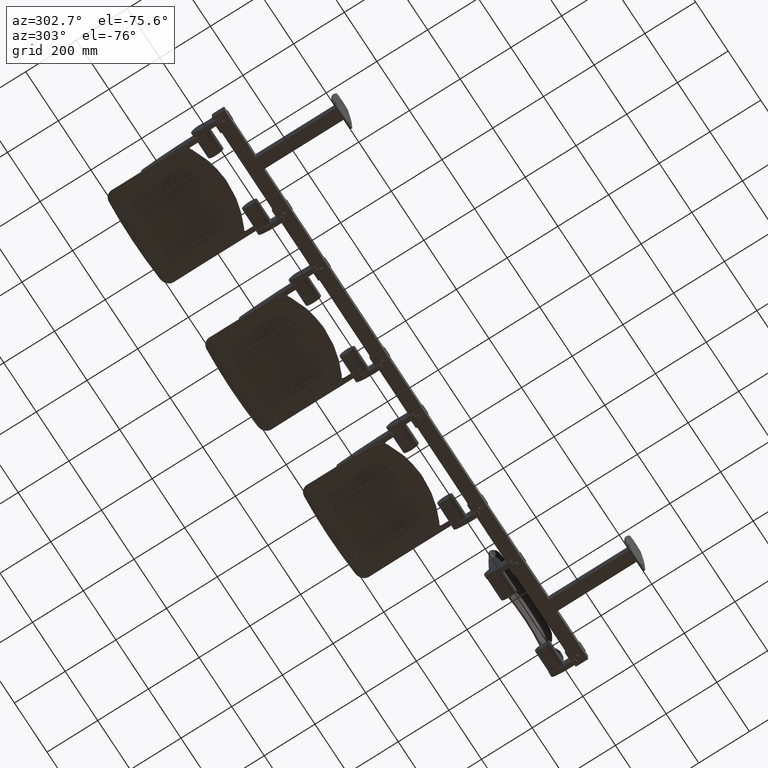
[diagram: clean part render]
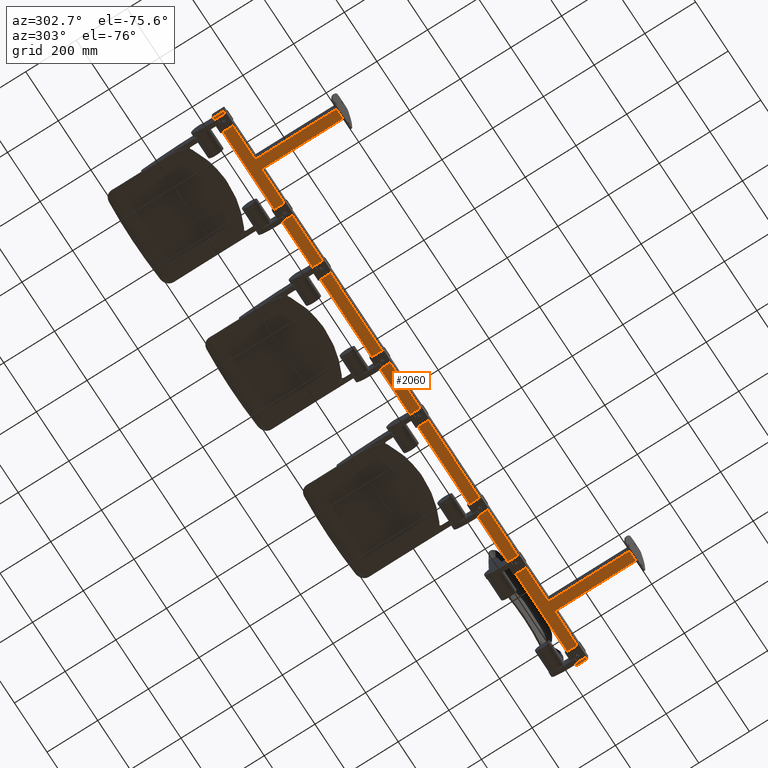
[diagram: same view with one face highlighted and labeled with its STEP entity id]
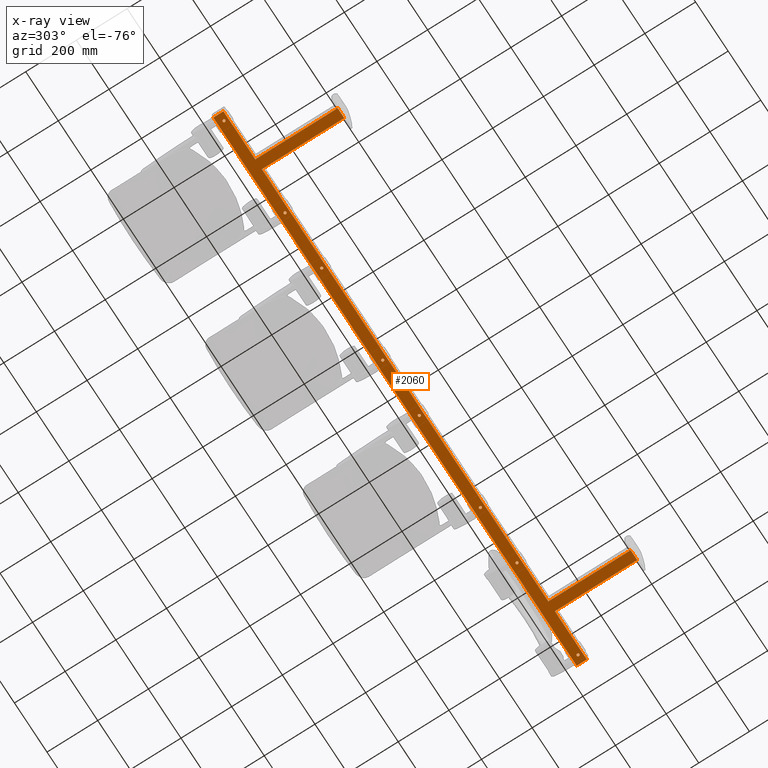
[diagram: x-ray of the same camera — body ghosted, the highlighted face saturated]
A machine part, auxiliary view. The second image highlights one B-rep face of the part: STEP entity #2060.
The next image is the same camera in x-ray: the body ghosted, the highlighted face saturated — about 0% of this face is hidden behind the body in this view.
In plain terms, the highlighted planar face has unit normal (0, 0, -1).
Its self-contained STEP definition (entity closure, byte-faithful):
#247 = CARTESIAN_POINT ( 'NONE',  ( 487.4999999999998300, 346.9999999999999400, -25.00000000000000000 ) ) ;
#248 = DIRECTION ( 'NONE',  ( 0.0000000000000000000, 0.0000000000000000000, 1.000000000000000000 ) ) ;
#249 = DIRECTION ( 'NONE',  ( 1.000000000000000000, 0.0000000000000000000, 0.0000000000000000000 ) ) ;
#251 = CARTESIAN_POINT ( 'NONE',  ( 112.4999999999998300, 346.9999999999998900, -25.00000000000000000 ) ) ;
#252 = DIRECTION ( 'NONE',  ( 0.0000000000000000000, 0.0000000000000000000, 1.000000000000000000 ) ) ;
#253 = DIRECTION ( 'NONE',  ( 1.000000000000000000, 0.0000000000000000000, 0.0000000000000000000 ) ) ;
#1372 = AXIS2_PLACEMENT_3D ( 'NONE', #3250, #3251, #3252 ) ;
#1377 = AXIS2_PLACEMENT_3D ( 'NONE', #3264, #3265, #3266 ) ;
#1382 = AXIS2_PLACEMENT_3D ( 'NONE', #3273, #3274, #3275 ) ;
#2060 = ADVANCED_FACE ( 'NONE', ( #11495, #11497, #11499, #11494, #11492, #11491, #11493, #11500, #11498 ), #11302, .T. ) ;
#2450 = CIRCLE ( 'NONE', #10338, 5.250000000000060400 ) ;
#2453 = CIRCLE ( 'NONE', #10339, 5.250000000000032000 ) ;
#2454 = CIRCLE ( 'NONE', #10341, 5.249999999999976900 ) ;
#2455 = CIRCLE ( 'NONE', #10340, 5.249999999999976900 ) ;
#2456 = LINE ( 'NONE', #14373, #2459 ) ;
#2457 = LINE ( 'NONE', #14372, #2461 ) ;
#2458 = CIRCLE ( 'NONE', #10343, 5.249999999999976900 ) ;
#2459 = VECTOR ( 'NONE', #14362, 1000.000000000000000 ) ;
#2460 = LINE ( 'NONE', #14378, #2463 ) ;
#2461 = VECTOR ( 'NONE', #14377, 1000.000000000000000 ) ;
#2462 = LINE ( 'NONE', #14380, #2465 ) ;
#2463 = VECTOR ( 'NONE', #14379, 1000.000000000000000 ) ;
#2464 = LINE ( 'NONE', #14382, #2467 ) ;
#2465 = VECTOR ( 'NONE', #14381, 1000.000000000000000 ) ;
#2466 = LINE ( 'NONE', #14384, #2469 ) ;
#2467 = VECTOR ( 'NONE', #14383, 1000.000000000000000 ) ;
#2468 = LINE ( 'NONE', #14386, #2471 ) ;
#2469 = VECTOR ( 'NONE', #14385, 1000.000000000000000 ) ;
#2470 = LINE ( 'NONE', #14388, #2473 ) ;
#2471 = VECTOR ( 'NONE', #14387, 1000.000000000000000 ) ;
#2472 = LINE ( 'NONE', #14390, #2475 ) ;
#2473 = VECTOR ( 'NONE', #14389, 1000.000000000000000 ) ;
#2474 = LINE ( 'NONE', #14392, #2477 ) ;
#2475 = VECTOR ( 'NONE', #14391, 1000.000000000000000 ) ;
#2476 = LINE ( 'NONE', #14394, #2479 ) ;
#2477 = VECTOR ( 'NONE', #14393, 1000.000000000000000 ) ;
#2478 = CIRCLE ( 'NONE', #10342, 5.249999999999976900 ) ;
#2479 = VECTOR ( 'NONE', #14395, 1000.000000000000000 ) ;
#2481 = CIRCLE ( 'NONE', #10344, 5.249999999999949400 ) ;
#2482 = CIRCLE ( 'NONE', #10345, 5.249999999999976900 ) ;
#2534 = LINE ( 'NONE', #14484, #2537 ) ;
#2537 = VECTOR ( 'NONE', #14485, 1000.000000000000000 ) ;
#2605 = CIRCLE ( 'NONE', #10373, 5.249999999999976900 ) ;
#2610 = CIRCLE ( 'NONE', #10375, 5.249999999999976900 ) ;
#2611 = CIRCLE ( 'NONE', #10376, 5.249999999999976900 ) ;
#3250 = CARTESIAN_POINT ( 'NONE',  ( -487.5000000000001700, 346.9999999999998900, -25.00000000000000000 ) ) ;
#3251 = DIRECTION ( 'NONE',  ( 0.0000000000000000000, 0.0000000000000000000, 1.000000000000000000 ) ) ;
#3252 = DIRECTION ( 'NONE',  ( 1.000000000000000000, 0.0000000000000000000, 0.0000000000000000000 ) ) ;
#3264 = CARTESIAN_POINT ( 'NONE',  ( -112.5000000000001600, 346.9999999999999400, -25.00000000000000000 ) ) ;
#3265 = DIRECTION ( 'NONE',  ( 0.0000000000000000000, 0.0000000000000000000, 1.000000000000000000 ) ) ;
#3266 = DIRECTION ( 'NONE',  ( 1.000000000000000000, 0.0000000000000000000, 0.0000000000000000000 ) ) ;
#3273 = CARTESIAN_POINT ( 'NONE',  ( 712.5000000000001100, 346.9999999999999400, -25.00000000000000000 ) ) ;
#3274 = DIRECTION ( 'NONE',  ( 0.0000000000000000000, 0.0000000000000000000, 1.000000000000000000 ) ) ;
#3275 = DIRECTION ( 'NONE',  ( -1.000000000000000000, 0.0000000000000000000, 0.0000000000000000000 ) ) ;
#3723 = CARTESIAN_POINT ( 'NONE',  ( 707.2500000000001100, 346.9999999999999400, -25.00000000000000000 ) ) ;
#3730 = CARTESIAN_POINT ( 'NONE',  ( -482.2500000000001100, 346.9999999999998900, -25.00000000000000000 ) ) ;
#4177 = CIRCLE ( 'NONE', #10427, 5.249999999999976900 ) ;
#4180 = CIRCLE ( 'NONE', #10428, 5.250000000000060400 ) ;
#4268 = EDGE_LOOP ( 'NONE', ( #11614, #11597 ) ) ;
#4291 = EDGE_LOOP ( 'NONE', ( #11633, #11631 ) ) ;
#4310 = EDGE_LOOP ( 'NONE', ( #11643, #11621 ) ) ;
#4352 = EDGE_LOOP ( 'NONE', ( #11612, #11611 ) ) ;
#4377 = EDGE_LOOP ( 'NONE', ( #11622, #11635 ) ) ;
#5585 = VERTEX_POINT ( 'NONE', #6415 ) ;
#5587 = VERTEX_POINT ( 'NONE', #6417 ) ;
#5591 = VERTEX_POINT ( 'NONE', #6421 ) ;
#5614 = VERTEX_POINT ( 'NONE', #6444 ) ;
#5642 = VERTEX_POINT ( 'NONE', #6040 ) ;
#5651 = VERTEX_POINT ( 'NONE', #6057 ) ;
#5656 = VERTEX_POINT ( 'NONE', #6066 ) ;
#5657 = VERTEX_POINT ( 'NONE', #6068 ) ;
#5659 = VERTEX_POINT ( 'NONE', #6072 ) ;
#5662 = VERTEX_POINT ( 'NONE', #6078 ) ;
#5664 = VERTEX_POINT ( 'NONE', #6081 ) ;
#5665 = VERTEX_POINT ( 'NONE', #6083 ) ;
#5667 = VERTEX_POINT ( 'NONE', #6087 ) ;
#5679 = VERTEX_POINT ( 'NONE', #6108 ) ;
#5681 = VERTEX_POINT ( 'NONE', #6112 ) ;
#5682 = VERTEX_POINT ( 'NONE', #6113 ) ;
#5708 = VERTEX_POINT ( 'NONE', #6162 ) ;
#5711 = VERTEX_POINT ( 'NONE', #6167 ) ;
#5713 = VERTEX_POINT ( 'NONE', #6171 ) ;
#5722 = VERTEX_POINT ( 'NONE', #6188 ) ;
#5758 = VERTEX_POINT ( 'NONE', #6255 ) ;
#5762 = VERTEX_POINT ( 'NONE', #6262 ) ;
#5763 = VERTEX_POINT ( 'NONE', #6263 ) ;
#5765 = VERTEX_POINT ( 'NONE', #6265 ) ;
#5769 = VERTEX_POINT ( 'NONE', #6269 ) ;
#5770 = VERTEX_POINT ( 'NONE', #6270 ) ;
#5807 = EDGE_LOOP ( 'NONE', ( #11608, #11607 ) ) ;
#6040 = CARTESIAN_POINT ( 'NONE',  ( 492.7499999999997700, 346.9999999999999400, -25.00000000000000000 ) ) ;
#6057 = CARTESIAN_POINT ( 'NONE',  ( 919.9999999999996600, 6.000000000000000900, -25.00000000000000000 ) ) ;
#6066 = CARTESIAN_POINT ( 'NONE',  ( 117.7499999999998900, 346.9999999999998900, -25.00000000000000000 ) ) ;
#6068 = CARTESIAN_POINT ( 'NONE',  ( 482.2499999999998300, 346.9999999999999400, -25.00000000000000000 ) ) ;
#6072 = CARTESIAN_POINT ( 'NONE',  ( -1115.999999999999800, 371.0000000000000000, -25.00000000000000000 ) ) ;
#6078 = CARTESIAN_POINT ( 'NONE',  ( 1116.000000000000000, 371.0000000000000000, -25.00000000000000000 ) ) ;
#6081 = CARTESIAN_POINT ( 'NONE',  ( -717.7500000000001100, 346.9999999999999400, -25.00000000000000000 ) ) ;
#6083 = CARTESIAN_POINT ( 'NONE',  ( -919.9999999999996600, 6.000000000000000900, -25.00000000000000000 ) ) ;
#6087 = CARTESIAN_POINT ( 'NONE',  ( -879.9999999999997700, 6.000000000000000000, -25.00000000000000000 ) ) ;
#6108 = CARTESIAN_POINT ( 'NONE',  ( -1092.750000000000000, 346.9999999999998900, -25.00000000000000000 ) ) ;
#6112 = CARTESIAN_POINT ( 'NONE',  ( -1082.250000000000200, 346.9999999999998900, -25.00000000000000000 ) ) ;
#6113 = CARTESIAN_POINT ( 'NONE',  ( 880.0000000000000000, 330.9999999999999400, -25.00000000000000000 ) ) ;
#6162 = CARTESIAN_POINT ( 'NONE',  ( -880.0000000000000000, 330.9999999999999400, -25.00000000000000000 ) ) ;
#6167 = CARTESIAN_POINT ( 'NONE',  ( 919.9999999999995500, 330.9999999999999400, -25.00000000000000000 ) ) ;
#6171 = CARTESIAN_POINT ( 'NONE',  ( 1116.000000000000000, 330.9999999999999400, -25.00000000000000000 ) ) ;
#6188 = CARTESIAN_POINT ( 'NONE',  ( -1116.000000000000000, 330.9999999999999400, -25.00000000000000000 ) ) ;
#6255 = CARTESIAN_POINT ( 'NONE',  ( 107.2499999999997600, 346.9999999999998900, -25.00000000000000000 ) ) ;
#6262 = CARTESIAN_POINT ( 'NONE',  ( -707.2500000000001100, 346.9999999999999400, -25.00000000000000000 ) ) ;
#6263 = CARTESIAN_POINT ( 'NONE',  ( 1092.750000000000000, 346.9999999999998900, -25.00000000000000000 ) ) ;
#6265 = CARTESIAN_POINT ( 'NONE',  ( -107.2500000000002100, 346.9999999999999400, -25.00000000000000000 ) ) ;
#6269 = CARTESIAN_POINT ( 'NONE',  ( 1082.250000000000200, 346.9999999999998900, -25.00000000000000000 ) ) ;
#6270 = CARTESIAN_POINT ( 'NONE',  ( 717.7500000000001100, 346.9999999999999400, -25.00000000000000000 ) ) ;
#6415 = CARTESIAN_POINT ( 'NONE',  ( -117.7500000000001000, 346.9999999999999400, -25.00000000000000000 ) ) ;
#6417 = CARTESIAN_POINT ( 'NONE',  ( -492.7500000000001700, 346.9999999999998900, -25.00000000000000000 ) ) ;
#6421 = CARTESIAN_POINT ( 'NONE',  ( -919.9999999999995500, 330.9999999999999400, -25.00000000000000000 ) ) ;
#6444 = CARTESIAN_POINT ( 'NONE',  ( 879.9999999999996600, 6.000000000000000900, -25.00000000000000000 ) ) ;
#9259 = EDGE_CURVE ( 'NONE', #5587, #10617, #17274, .T. ) ;
#9265 = EDGE_CURVE ( 'NONE', #5585, #5765, #17288, .T. ) ;
#9268 = EDGE_CURVE ( 'NONE', #10618, #5770, #17290, .T. ) ;
#10338 = AXIS2_PLACEMENT_3D ( 'NONE', #14363, #14364, #14365 ) ;
#10339 = AXIS2_PLACEMENT_3D ( 'NONE', #14366, #14367, #14368 ) ;
#10340 = AXIS2_PLACEMENT_3D ( 'NONE', #14369, #14370, #14371 ) ;
#10341 = AXIS2_PLACEMENT_3D ( 'NONE', #14374, #14375, #14376 ) ;
#10342 = AXIS2_PLACEMENT_3D ( 'NONE', #14396, #14397, #14398 ) ;
#10343 = AXIS2_PLACEMENT_3D ( 'NONE', #14400, #14401, #14402 ) ;
#10344 = AXIS2_PLACEMENT_3D ( 'NONE', #14404, #14405, #14406 ) ;
#10345 = AXIS2_PLACEMENT_3D ( 'NONE', #14409, #14410, #14411 ) ;
#10373 = AXIS2_PLACEMENT_3D ( 'NONE', #14669, #14670, #14671 ) ;
#10375 = AXIS2_PLACEMENT_3D ( 'NONE', #14677, #14678, #14679 ) ;
#10376 = AXIS2_PLACEMENT_3D ( 'NONE', #14681, #14682, #14683 ) ;
#10427 = AXIS2_PLACEMENT_3D ( 'NONE', #247, #248, #249 ) ;
#10428 = AXIS2_PLACEMENT_3D ( 'NONE', #251, #252, #253 ) ;
#10617 = VERTEX_POINT ( 'NONE', #3730 ) ;
#10618 = VERTEX_POINT ( 'NONE', #3723 ) ;
#11300 = CARTESIAN_POINT ( 'NONE',  ( 0.0000000000000000000, 0.0000000000000000000, -25.00000000000000000 ) ) ;
#11302 = PLANE ( 'NONE',  #16951 ) ;
#11303 = DIRECTION ( 'NONE',  ( 0.0000000000000000000, 0.0000000000000000000, -1.000000000000000000 ) ) ;
#11304 = DIRECTION ( 'NONE',  ( -1.000000000000000000, 0.0000000000000000000, -0.0000000000000000000 ) ) ;
#11491 = FACE_BOUND ( 'NONE', #4352, .T. ) ;
#11492 = FACE_OUTER_BOUND ( 'NONE', #11662, .T. ) ;
#11493 = FACE_BOUND ( 'NONE', #11661, .T. ) ;
#11494 = FACE_BOUND ( 'NONE', #11680, .T. ) ;
#11495 = FACE_BOUND ( 'NONE', #4310, .T. ) ;
#11497 = FACE_BOUND ( 'NONE', #4291, .T. ) ;
#11498 = FACE_BOUND ( 'NONE', #5807, .T. ) ;
#11499 = FACE_BOUND ( 'NONE', #4377, .T. ) ;
#11500 = FACE_BOUND ( 'NONE', #4268, .T. ) ;
#11597 = ORIENTED_EDGE ( 'NONE', *, *, #16159, .T. ) ;
#11599 = ORIENTED_EDGE ( 'NONE', *, *, #16154, .T. ) ;
#11604 = ORIENTED_EDGE ( 'NONE', *, *, #9268, .T. ) ;
#11605 = ORIENTED_EDGE ( 'NONE', *, *, #16158, .T. ) ;
#11607 = ORIENTED_EDGE ( 'NONE', *, *, #16160, .T. ) ;
#11608 = ORIENTED_EDGE ( 'NONE', *, *, #16883, .T. ) ;
#11610 = ORIENTED_EDGE ( 'NONE', *, *, #16155, .T. ) ;
#11611 = ORIENTED_EDGE ( 'NONE', *, *, #16157, .T. ) ;
#11612 = ORIENTED_EDGE ( 'NONE', *, *, #16732, .T. ) ;
#11613 = ORIENTED_EDGE ( 'NONE', *, *, #16147, .T. ) ;
#11614 = ORIENTED_EDGE ( 'NONE', *, *, #9265, .T. ) ;
#11615 = ORIENTED_EDGE ( 'NONE', *, *, #16156, .T. ) ;
#11616 = ORIENTED_EDGE ( 'NONE', *, *, #16683, .F. ) ;
#11617 = ORIENTED_EDGE ( 'NONE', *, *, #16149, .T. ) ;
#11618 = ORIENTED_EDGE ( 'NONE', *, *, #16152, .T. ) ;
#11619 = ORIENTED_EDGE ( 'NONE', *, *, #16153, .T. ) ;
#11620 = ORIENTED_EDGE ( 'NONE', *, *, #16150, .F. ) ;
#11621 = ORIENTED_EDGE ( 'NONE', *, *, #16142, .T. ) ;
#11622 = ORIENTED_EDGE ( 'NONE', *, *, #16729, .T. ) ;
#11624 = ORIENTED_EDGE ( 'NONE', *, *, #16148, .T. ) ;
#11625 = ORIENTED_EDGE ( 'NONE', *, *, #16151, .T. ) ;
#11626 = ORIENTED_EDGE ( 'NONE', *, *, #16733, .T. ) ;
#11627 = ORIENTED_EDGE ( 'NONE', *, *, #16145, .T. ) ;
#11630 = ORIENTED_EDGE ( 'NONE', *, *, #16146, .T. ) ;
#11631 = ORIENTED_EDGE ( 'NONE', *, *, #16143, .T. ) ;
#11633 = ORIENTED_EDGE ( 'NONE', *, *, #9259, .T. ) ;
#11635 = ORIENTED_EDGE ( 'NONE', *, *, #16144, .T. ) ;
#11643 = ORIENTED_EDGE ( 'NONE', *, *, #16885, .T. ) ;
#11661 = EDGE_LOOP ( 'NONE', ( #11604, #11605 ) ) ;
#11662 = EDGE_LOOP ( 'NONE', ( #11630, #11613, #11624, #11617, #11620, #11625, #11618, #11619, #11616, #11599, #11610, #11615 ) ) ;
#11680 = EDGE_LOOP ( 'NONE', ( #11626, #11627 ) ) ;
#14362 = DIRECTION ( 'NONE',  ( 1.000000000000000000, -0.0000000000000000000, -0.0000000000000000000 ) ) ;
#14363 = CARTESIAN_POINT ( 'NONE',  ( 112.4999999999998300, 346.9999999999998900, -25.00000000000000000 ) ) ;
#14364 = DIRECTION ( 'NONE',  ( 0.0000000000000000000, 0.0000000000000000000, 1.000000000000000000 ) ) ;
#14365 = DIRECTION ( 'NONE',  ( 1.000000000000000000, 0.0000000000000000000, 0.0000000000000000000 ) ) ;
#14366 = CARTESIAN_POINT ( 'NONE',  ( -487.5000000000001700, 346.9999999999998900, -25.00000000000000000 ) ) ;
#14367 = DIRECTION ( 'NONE',  ( 0.0000000000000000000, 0.0000000000000000000, 1.000000000000000000 ) ) ;
#14368 = DIRECTION ( 'NONE',  ( 1.000000000000000000, 0.0000000000000000000, 0.0000000000000000000 ) ) ;
#14369 = CARTESIAN_POINT ( 'NONE',  ( 1087.500000000000200, 346.9999999999998900, -25.00000000000000000 ) ) ;
#14370 = DIRECTION ( 'NONE',  ( 0.0000000000000000000, 0.0000000000000000000, 1.000000000000000000 ) ) ;
#14371 = DIRECTION ( 'NONE',  ( -1.000000000000000000, 0.0000000000000000000, 0.0000000000000000000 ) ) ;
#14372 = CARTESIAN_POINT ( 'NONE',  ( 1116.000000000000000, 330.9999999999999400, -25.00000000000000000 ) ) ;
#14373 = CARTESIAN_POINT ( 'NONE',  ( 1118.000000000000000, 371.0000000000000000, -25.00000000000000000 ) ) ;
#14374 = CARTESIAN_POINT ( 'NONE',  ( -1087.500000000000200, 346.9999999999998900, -25.00000000000000000 ) ) ;
#14375 = DIRECTION ( 'NONE',  ( 0.0000000000000000000, 0.0000000000000000000, 1.000000000000000000 ) ) ;
#14376 = DIRECTION ( 'NONE',  ( 1.000000000000000000, 0.0000000000000000000, 0.0000000000000000000 ) ) ;
#14377 = DIRECTION ( 'NONE',  ( -0.0000000000000000000, -1.000000000000000000, -0.0000000000000000000 ) ) ;
#14378 = CARTESIAN_POINT ( 'NONE',  ( 924.9999999999995500, 330.9999999999999400, -25.00000000000000000 ) ) ;
#14379 = DIRECTION ( 'NONE',  ( -1.000000000000000000, -0.0000000000000000000, -0.0000000000000000000 ) ) ;
#14380 = CARTESIAN_POINT ( 'NONE',  ( 919.9999999999996600, 5.999999999999999100, -25.00000000000000000 ) ) ;
#14381 = DIRECTION ( 'NONE',  ( 3.469446951953614700E-016, -1.000000000000000000, -0.0000000000000000000 ) ) ;
#14382 = CARTESIAN_POINT ( 'NONE',  ( 874.9999999999996600, 6.000000000000000900, -25.00000000000000000 ) ) ;
#14383 = DIRECTION ( 'NONE',  ( 1.000000000000000000, 0.0000000000000000000, 0.0000000000000000000 ) ) ;
#14384 = CARTESIAN_POINT ( 'NONE',  ( 880.0000000000000000, 325.9999999999999400, -25.00000000000000000 ) ) ;
#14385 = DIRECTION ( 'NONE',  ( 1.040834085586084500E-015, 1.000000000000000000, -0.0000000000000000000 ) ) ;
#14386 = CARTESIAN_POINT ( 'NONE',  ( -875.0000000000000000, 330.9999999999999400, -25.00000000000000000 ) ) ;
#14387 = DIRECTION ( 'NONE',  ( -1.000000000000000000, -0.0000000000000000000, -0.0000000000000000000 ) ) ;
#14388 = CARTESIAN_POINT ( 'NONE',  ( -879.9999999999997700, 5.999999999999996400, -25.00000000000000000 ) ) ;
#14389 = DIRECTION ( 'NONE',  ( 6.938893903907229400E-016, -1.000000000000000000, -0.0000000000000000000 ) ) ;
#14390 = CARTESIAN_POINT ( 'NONE',  ( -919.9999999999995500, 325.9999999999999400, -25.00000000000000000 ) ) ;
#14391 = DIRECTION ( 'NONE',  ( 3.469446951953614700E-016, 1.000000000000000000, -0.0000000000000000000 ) ) ;
#14392 = CARTESIAN_POINT ( 'NONE',  ( -1118.000000000000000, 330.9999999999999400, -25.00000000000000000 ) ) ;
#14393 = DIRECTION ( 'NONE',  ( -1.000000000000000000, -0.0000000000000000000, -0.0000000000000000000 ) ) ;
#14394 = CARTESIAN_POINT ( 'NONE',  ( -1116.000000000000000, 371.0000000000000000, -25.00000000000000000 ) ) ;
#14395 = DIRECTION ( 'NONE',  ( -0.0000000000000000000, 1.000000000000000000, -0.0000000000000000000 ) ) ;
#14396 = CARTESIAN_POINT ( 'NONE',  ( -712.5000000000001100, 346.9999999999999400, -25.00000000000000000 ) ) ;
#14397 = DIRECTION ( 'NONE',  ( 0.0000000000000000000, 0.0000000000000000000, 1.000000000000000000 ) ) ;
#14398 = DIRECTION ( 'NONE',  ( 1.000000000000000000, 0.0000000000000000000, 0.0000000000000000000 ) ) ;
#14400 = CARTESIAN_POINT ( 'NONE',  ( 712.5000000000001100, 346.9999999999999400, -25.00000000000000000 ) ) ;
#14401 = DIRECTION ( 'NONE',  ( 0.0000000000000000000, 0.0000000000000000000, 1.000000000000000000 ) ) ;
#14402 = DIRECTION ( 'NONE',  ( -1.000000000000000000, 0.0000000000000000000, 0.0000000000000000000 ) ) ;
#14404 = CARTESIAN_POINT ( 'NONE',  ( -112.5000000000001600, 346.9999999999999400, -25.00000000000000000 ) ) ;
#14405 = DIRECTION ( 'NONE',  ( 0.0000000000000000000, 0.0000000000000000000, 1.000000000000000000 ) ) ;
#14406 = DIRECTION ( 'NONE',  ( 1.000000000000000000, 0.0000000000000000000, 0.0000000000000000000 ) ) ;
#14409 = CARTESIAN_POINT ( 'NONE',  ( 487.4999999999998300, 346.9999999999999400, -25.00000000000000000 ) ) ;
#14410 = DIRECTION ( 'NONE',  ( 0.0000000000000000000, 0.0000000000000000000, 1.000000000000000000 ) ) ;
#14411 = DIRECTION ( 'NONE',  ( 1.000000000000000000, 0.0000000000000000000, 0.0000000000000000000 ) ) ;
#14484 = CARTESIAN_POINT ( 'NONE',  ( -924.9999999999996600, 6.000000000000000900, -25.00000000000000000 ) ) ;
#14485 = DIRECTION ( 'NONE',  ( 1.000000000000000000, -1.734723475976809600E-017, 0.0000000000000000000 ) ) ;
#14669 = CARTESIAN_POINT ( 'NONE',  ( 1087.500000000000200, 346.9999999999998900, -25.00000000000000000 ) ) ;
#14670 = DIRECTION ( 'NONE',  ( 0.0000000000000000000, 0.0000000000000000000, 1.000000000000000000 ) ) ;
#14671 = DIRECTION ( 'NONE',  ( -1.000000000000000000, 0.0000000000000000000, 0.0000000000000000000 ) ) ;
#14677 = CARTESIAN_POINT ( 'NONE',  ( -712.5000000000001100, 346.9999999999999400, -25.00000000000000000 ) ) ;
#14678 = DIRECTION ( 'NONE',  ( 0.0000000000000000000, 0.0000000000000000000, 1.000000000000000000 ) ) ;
#14679 = DIRECTION ( 'NONE',  ( 1.000000000000000000, 0.0000000000000000000, 0.0000000000000000000 ) ) ;
#14681 = CARTESIAN_POINT ( 'NONE',  ( -1087.500000000000200, 346.9999999999998900, -25.00000000000000000 ) ) ;
#14682 = DIRECTION ( 'NONE',  ( 0.0000000000000000000, 0.0000000000000000000, 1.000000000000000000 ) ) ;
#14683 = DIRECTION ( 'NONE',  ( 1.000000000000000000, 0.0000000000000000000, 0.0000000000000000000 ) ) ;
#16142 = EDGE_CURVE ( 'NONE', #5656, #5758, #2450, .T. ) ;
#16143 = EDGE_CURVE ( 'NONE', #10617, #5587, #2453, .T. ) ;
#16144 = EDGE_CURVE ( 'NONE', #5763, #5769, #2455, .T. ) ;
#16145 = EDGE_CURVE ( 'NONE', #5681, #5679, #2454, .T. ) ;
#16146 = EDGE_CURVE ( 'NONE', #5659, #5662, #2456, .T. ) ;
#16147 = EDGE_CURVE ( 'NONE', #5662, #5713, #2457, .T. ) ;
#16148 = EDGE_CURVE ( 'NONE', #5713, #5711, #2460, .T. ) ;
#16149 = EDGE_CURVE ( 'NONE', #5711, #5651, #2462, .T. ) ;
#16150 = EDGE_CURVE ( 'NONE', #5614, #5651, #2464, .T. ) ;
#16151 = EDGE_CURVE ( 'NONE', #5614, #5682, #2466, .T. ) ;
#16152 = EDGE_CURVE ( 'NONE', #5682, #5708, #2468, .T. ) ;
#16153 = EDGE_CURVE ( 'NONE', #5708, #5667, #2470, .T. ) ;
#16154 = EDGE_CURVE ( 'NONE', #5665, #5591, #2472, .T. ) ;
#16155 = EDGE_CURVE ( 'NONE', #5591, #5722, #2474, .T. ) ;
#16156 = EDGE_CURVE ( 'NONE', #5722, #5659, #2476, .T. ) ;
#16157 = EDGE_CURVE ( 'NONE', #5762, #5664, #2478, .T. ) ;
#16158 = EDGE_CURVE ( 'NONE', #5770, #10618, #2458, .T. ) ;
#16159 = EDGE_CURVE ( 'NONE', #5765, #5585, #2481, .T. ) ;
#16160 = EDGE_CURVE ( 'NONE', #5642, #5657, #2482, .T. ) ;
#16683 = EDGE_CURVE ( 'NONE', #5665, #5667, #2534, .T. ) ;
#16729 = EDGE_CURVE ( 'NONE', #5769, #5763, #2605, .T. ) ;
#16732 = EDGE_CURVE ( 'NONE', #5664, #5762, #2610, .T. ) ;
#16733 = EDGE_CURVE ( 'NONE', #5679, #5681, #2611, .T. ) ;
#16883 = EDGE_CURVE ( 'NONE', #5657, #5642, #4177, .T. ) ;
#16885 = EDGE_CURVE ( 'NONE', #5758, #5656, #4180, .T. ) ;
#16951 = AXIS2_PLACEMENT_3D ( 'NONE', #11300, #11303, #11304 ) ;
#17274 = CIRCLE ( 'NONE', #1372, 5.250000000000032000 ) ;
#17288 = CIRCLE ( 'NONE', #1377, 5.249999999999949400 ) ;
#17290 = CIRCLE ( 'NONE', #1382, 5.249999999999976900 ) ;